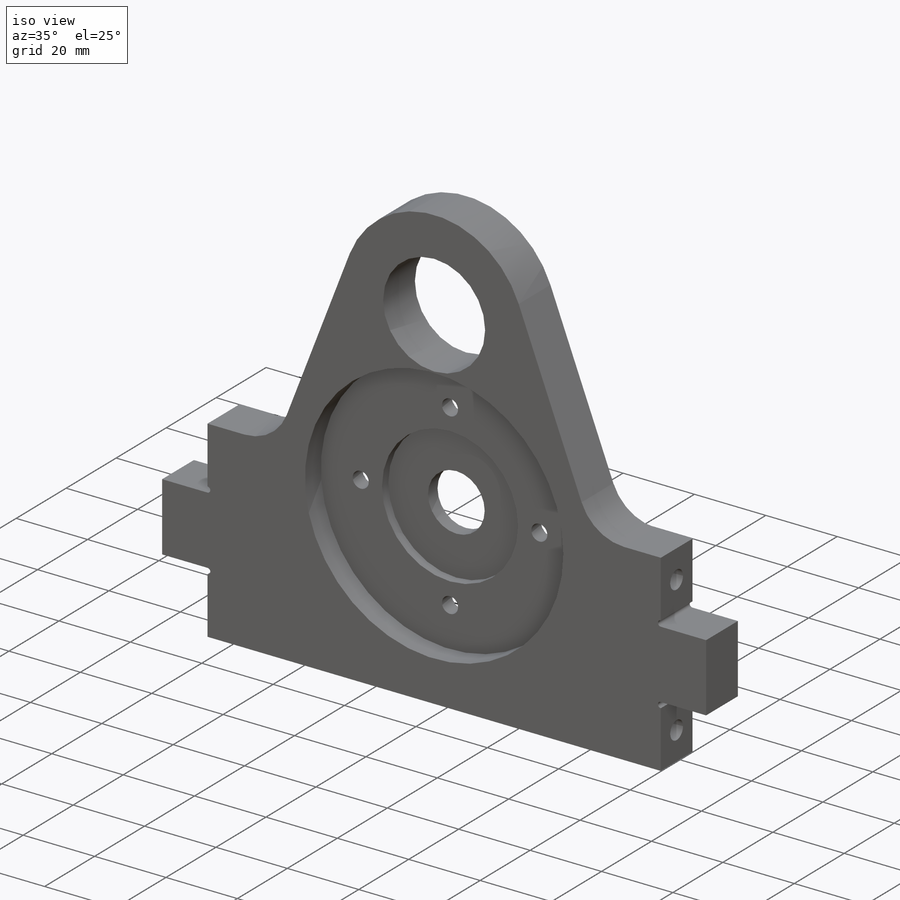
[diagram: iso view]
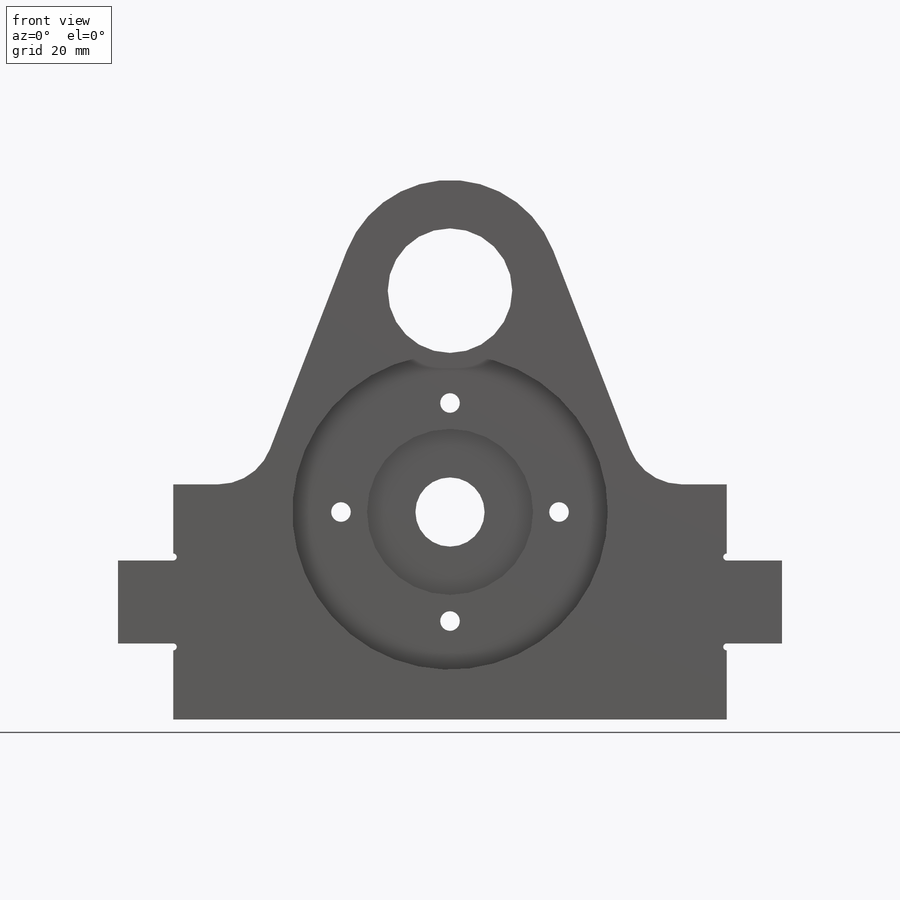
[diagram: front view]
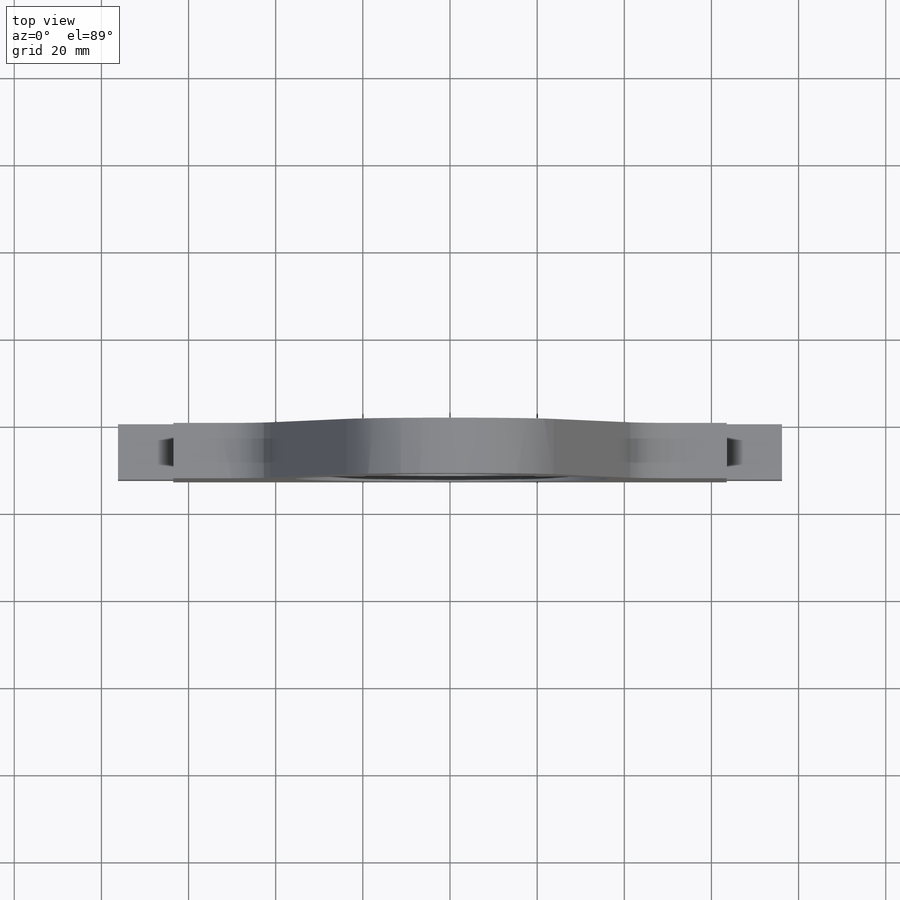
[diagram: top view]
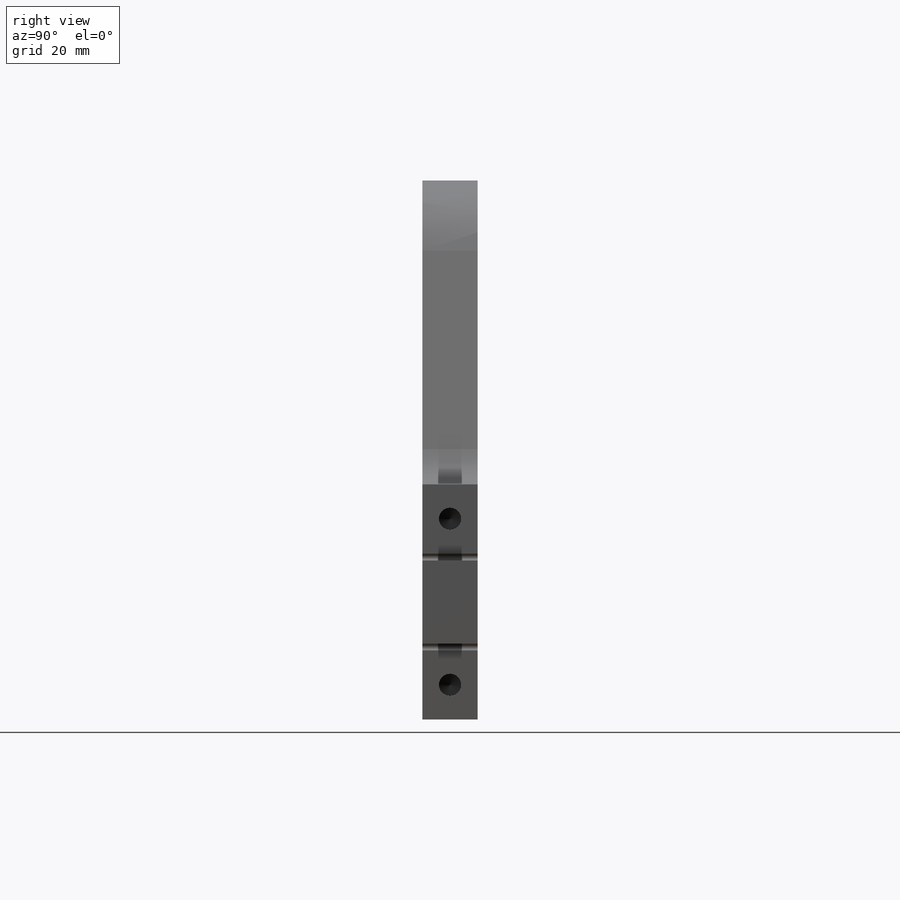
[diagram: right view]
SOLIDWORKS PART (.sldprt)
format: sldprt  version: not decoded by parser v0  size: 391,168 bytes
history: native  units: mm
features: sketch x12, cut_extrude x5, extrude x3, hole x2, material x1, fillet x1, mirror x1 (+13 scaffold rows collapsed)
feature tree (38):
  scaffold x13  (default folders/planes/origin — collapsed)
  material  "6061-T6 (SS)"
  sketch  "Sketch1"  dims[c1.D1=~41.053983mm c1.D2=~38.044161mm c2.D1=127.0mm c2.D2=152.4mm]
  extrude  "Boss-Extrude1"  Depth=12.7mm
  sketch  "Sketch2"  dims[c1.D1=28.575mm c1.D2=50.8mm c1.D3=76.2mm c1.D6=~10.792214mm c1.D4=19.05mm c1.D5=19.05mm c2.D6=50.8mm]
  cut_extrude  "Cut-Extrude1"  [1 undecoded]
  sketch  "Sketch3"  dims[D1=2.032mm]
  cut_extrude  "Cut-Extrude2"  [1 undecoded]
  sketch  "Sketch4"  dims[D1=~36.898824mm]
  cut_extrude  "Cut-Extrude3"  Depth=6.35mm
  sketch  "Sketch5"  dims[D1=~18.946189mm]
  cut_extrude  "Cut-Extrude4"  Depth=2.54mm
  hole  "CSK for #8 Flat Head Machine Screw1"  Diameter=4.4958mm Depth=12.7mm
  sketch  "Sketch7"
  sketch  "Sketch6"  dims[hole-wizard template sketch: 55 standard entries collapsed; hole parameters kept: c17.Thru Hole Depth=12.7mm c17.Near C'Sink Dia.=8.4328mm c17.D4=~3.666174mm c17.Near C'Sink Angle=82.0deg]
  fillet  "Fillet1"  Radius=12.7mm
  sketch  "Sketch8"  dims[D1=3.175mm D2=127.0mm]
  extrude  "Boss-Extrude2"  Depth=12.7mm
  hole  "1/4-20 Tapped Hole1"  Diameter=5.1054mm Depth=16.51mm
  sketch  "Sketch10"  dims[D1=19.05mm]
  sketch  "Sketch9"  dims[hole-wizard template sketch: 50 standard entries collapsed; hole parameters above]
  sketch  "Sketch11"  dims[c1.D1=~17.121043mm c1.D2=12.7mm c2.D1=19.05mm]
  extrude  "Boss-Extrude3"  Depth=12.7mm
  sketch  "Sketch12"  dims[D1=1.5875mm]
  cut_extrude  "Cut-Extrude5"  [1 undecoded]
  mirror  "Mirror1"
decode coverage: 19 of 24 modeling features carry decoded parameters
note: ~ marks probable driven/reference dimensions
note: 3 parameter values undecoded
summary: no parameter record found for 3 features
note: suppression state not decoded; provenance and decode notes live in map.json
